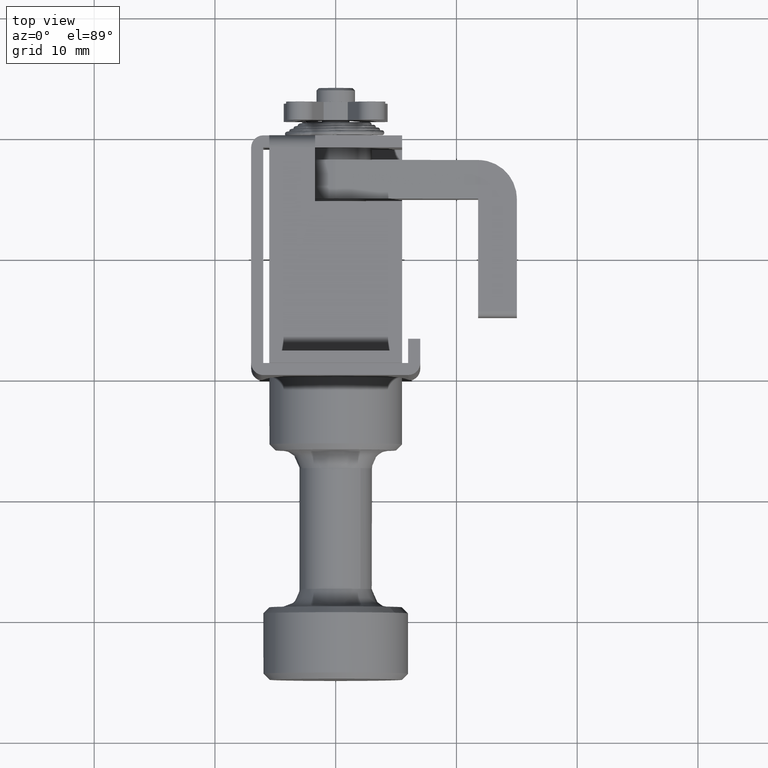
[diagram: clean part render]
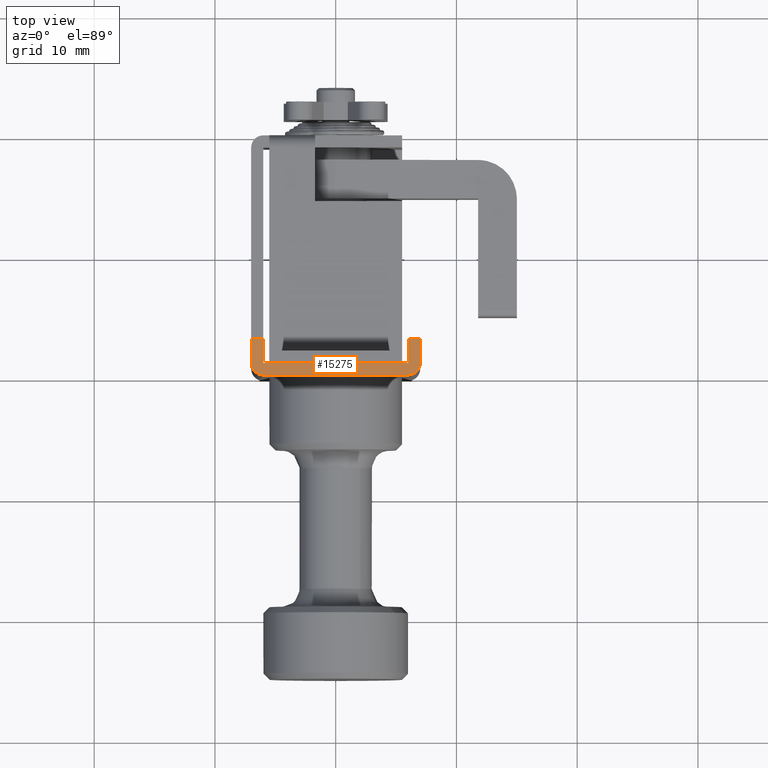
[diagram: same view with one face highlighted and labeled with its STEP entity id]
A machine part, top view. The second image highlights one B-rep face of the part: STEP entity #15275.
In plain terms, the highlighted face is a freeform B-spline surface patch.
Its self-contained STEP definition (entity closure, byte-faithful):
#14710=CARTESIAN_POINT('',(1.0,7.0,14.000000277756600));
#14711=VERTEX_POINT('',#14710);
#14712=CARTESIAN_POINT('',(3.0,7.0,14.000000277756600));
#14713=VERTEX_POINT('',#14712);
#14714=CARTESIAN_POINT('',(1.0,7.0,14.000000277756600));
#14715=CARTESIAN_POINT('',(3.0,7.0,14.000000277756600));
#14716=QUASI_UNIFORM_CURVE('',1,(#14714,#14715),.UNSPECIFIED.,.F.,.U.);
#14717=EDGE_CURVE('',#14711,#14713,#14716,.T.);
#14768=CARTESIAN_POINT('',(3.0,6.0,14.000000277756600));
#14769=VERTEX_POINT('',#14768);
#14781=CARTESIAN_POINT('',(3.0,7.0,14.000000277756600));
#14782=CARTESIAN_POINT('',(3.0,6.0,14.000000277756600));
#14783=QUASI_UNIFORM_CURVE('',1,(#14781,#14782),.UNSPECIFIED.,.F.,.U.);
#14784=EDGE_CURVE('',#14713,#14769,#14783,.T.);
#14794=CARTESIAN_POINT('',(1.0,6.0,14.000000277756600));
#14795=VERTEX_POINT('',#14794);
#14796=CARTESIAN_POINT('',(3.0,6.0,14.000000277756600));
#14797=CARTESIAN_POINT('',(1.0,6.0,14.000000277756600));
#14798=QUASI_UNIFORM_CURVE('',1,(#14796,#14797),.UNSPECIFIED.,.F.,.U.);
#14799=EDGE_CURVE('',#14769,#14795,#14798,.T.);
#14852=CARTESIAN_POINT('',(1.0,-6.0,14.000000277756600));
#14853=VERTEX_POINT('',#14852);
#14865=CARTESIAN_POINT('',(1.0,6.0,14.000000277756600));
#14866=CARTESIAN_POINT('',(1.0,-6.0,14.000000277756600));
#14867=QUASI_UNIFORM_CURVE('',1,(#14865,#14866),.UNSPECIFIED.,.F.,.U.);
#14868=EDGE_CURVE('',#14795,#14853,#14867,.T.);
#14896=CARTESIAN_POINT('',(3.0,-6.0,14.000000277756600));
#14897=VERTEX_POINT('',#14896);
#14898=CARTESIAN_POINT('',(1.0,-6.0,14.000000277756600));
#14899=CARTESIAN_POINT('',(3.0,-6.0,14.000000277756600));
#14900=QUASI_UNIFORM_CURVE('',1,(#14898,#14899),.UNSPECIFIED.,.F.,.U.);
#14901=EDGE_CURVE('',#14853,#14897,#14900,.T.);
#14924=CARTESIAN_POINT('',(3.0,-7.0,14.000000277756600));
#14925=VERTEX_POINT('',#14924);
#14926=CARTESIAN_POINT('',(3.0,-6.0,14.000000277756600));
#14927=CARTESIAN_POINT('',(3.0,-7.0,14.000000277756600));
#14928=QUASI_UNIFORM_CURVE('',1,(#14926,#14927),.UNSPECIFIED.,.F.,.U.);
#14929=EDGE_CURVE('',#14897,#14925,#14928,.T.);
#14952=CARTESIAN_POINT('',(1.0,-7.0,14.000000277756600));
#14953=VERTEX_POINT('',#14952);
#14954=CARTESIAN_POINT('',(3.0,-7.0,14.000000277756600));
#14955=CARTESIAN_POINT('',(1.0,-7.0,14.000000277756600));
#14956=QUASI_UNIFORM_CURVE('',1,(#14954,#14955),.UNSPECIFIED.,.F.,.U.);
#14957=EDGE_CURVE('',#14925,#14953,#14956,.T.);
#14989=CARTESIAN_POINT('',(4.440892E-016,-6.0,14.000000277756600));
#14990=VERTEX_POINT('',#14989);
#14991=CARTESIAN_POINT('',(0.0,-6.0,14.000000277756600));
#14992=CARTESIAN_POINT('',(0.0,-6.999999999999999,14.000000277756600));
#14993=CARTESIAN_POINT('',(1.0,-7.0,14.000000277756600));
#15001=(BOUNDED_CURVE()B_SPLINE_CURVE(2,(#14991,#14992,#14993),.UNSPECIFIED.,.F.,.U.)CURVE()GEOMETRIC_REPRESENTATION_ITEM()QUASI_UNIFORM_CURVE()RATIONAL_B_SPLINE_CURVE((1.0,0.707106781186548,1.0))REPRESENTATION_ITEM(''));
#15002=EDGE_CURVE('',#14990,#14953,#15001,.T.);
#15033=CARTESIAN_POINT('',(-7.347638E-016,6.0,14.000000277756600));
#15034=VERTEX_POINT('',#15033);
#15035=CARTESIAN_POINT('',(4.440892E-016,-6.0,14.000000277756600));
#15036=CARTESIAN_POINT('',(-7.347638E-016,6.0,14.000000277756600));
#15037=QUASI_UNIFORM_CURVE('',1,(#15035,#15036),.UNSPECIFIED.,.F.,.U.);
#15038=EDGE_CURVE('',#14990,#15034,#15037,.T.);
#15088=CARTESIAN_POINT('',(1.0,7.0,14.000000277756600));
#15089=CARTESIAN_POINT('',(0.0,6.999999999999999,14.000000277756600));
#15090=CARTESIAN_POINT('',(0.0,6.0,14.000000277756600));
#15098=(BOUNDED_CURVE()B_SPLINE_CURVE(2,(#15088,#15089,#15090),.UNSPECIFIED.,.F.,.U.)CURVE()GEOMETRIC_REPRESENTATION_ITEM()QUASI_UNIFORM_CURVE()RATIONAL_B_SPLINE_CURVE((1.0,0.707106781186548,1.0))REPRESENTATION_ITEM(''));
#15099=EDGE_CURVE('',#14711,#15034,#15098,.T.);
#15258=CARTESIAN_POINT('',(-0.149849994185419,7.699299972865286,14.000000277756580));
#15259=CARTESIAN_POINT('',(3.149850074651689,7.699299972865286,14.000000277756580));
#15260=CARTESIAN_POINT('',(-0.149849994185419,-7.699300348374547,14.000000277756580));
#15261=CARTESIAN_POINT('',(3.149850074651689,-7.699300348374547,14.000000277756580));
#15262=B_SPLINE_SURFACE_WITH_KNOTS('',1,1,((#15258,#15260),(#15259,#15261)),.UNSPECIFIED.,.F.,.F.,.U.,(2,2),(2,2),(0.0,3.299700068837107),(0.0,15.398600321239829),.UNSPECIFIED.);
#15263=ORIENTED_EDGE('',*,*,#14901,.F.);
#15264=ORIENTED_EDGE('',*,*,#14868,.F.);
#15265=ORIENTED_EDGE('',*,*,#14799,.F.);
#15266=ORIENTED_EDGE('',*,*,#14784,.F.);
#15267=ORIENTED_EDGE('',*,*,#14717,.F.);
#15268=ORIENTED_EDGE('',*,*,#15099,.T.);
#15269=ORIENTED_EDGE('',*,*,#15038,.F.);
#15270=ORIENTED_EDGE('',*,*,#15002,.T.);
#15271=ORIENTED_EDGE('',*,*,#14957,.F.);
#15272=ORIENTED_EDGE('',*,*,#14929,.F.);
#15273=EDGE_LOOP('',(#15263,#15264,#15265,#15266,#15267,#15268,#15269,#15270,#15271,#15272));
#15274=FACE_OUTER_BOUND('',#15273,.T.);
#15275=ADVANCED_FACE('',(#15274),#15262,.F.);